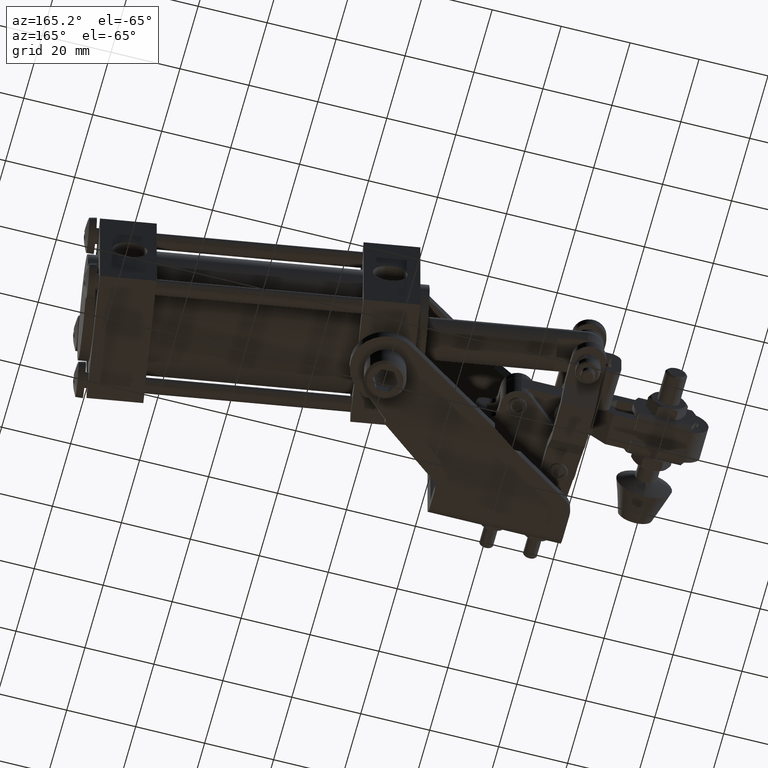
[diagram: clean part render]
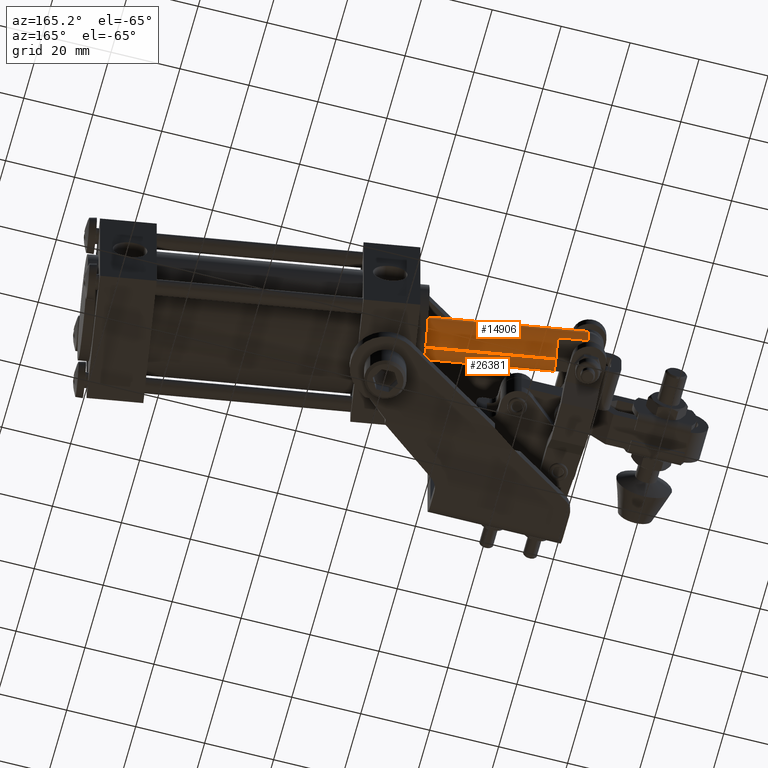
[diagram: same view with one multi-face feature highlighted, each face labeled with its STEP entity id]
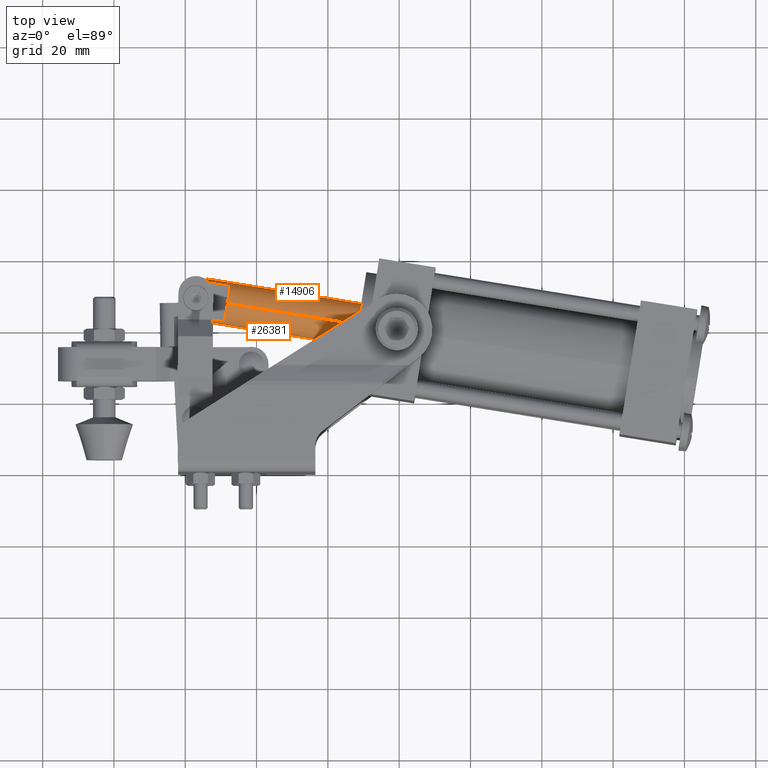
[diagram: same view with one multi-face feature highlighted, each face labeled with its STEP entity id]
A machine part, auxiliary view. The highlighted faces form ONE feature: a constant-radius fillet chain: 2 tangent blend faces with common blend radius 6 mm. The faces share edges in the B-rep.
A second angle (top view) of the same feature is appended — it is thin or edge-on in the first view.
Their STEP definitions:
[1] entity #14906 (Cylinder):
#263 = DIRECTION ( 'NONE',  ( -0.9873515853984645700, 0.1585460400361314000, 1.306212789964221800E-016 ) ) ;
#413 = AXIS2_PLACEMENT_3D ( 'NONE', #27029, #12711, #29423 ) ;
#1218 = AXIS2_PLACEMENT_3D ( 'NONE', #18357, #30197, #1565 ) ;
#1494 = DIRECTION ( 'NONE',  ( 0.0000000000000000000, 0.0000000000000000000, 1.000000000000000000 ) ) ;
#1565 = DIRECTION ( 'NONE',  ( 0.0000000000000000000, 0.0000000000000000000, 1.000000000000000000 ) ) ;
#2232 = VERTEX_POINT ( 'NONE', #17697 ) ;
#3761 = VERTEX_POINT ( 'NONE', #18437 ) ;
#3818 = CARTESIAN_POINT ( 'NONE',  ( 48.19142817750997000, 40.62341611972578900, 2.999999999999984000 ) ) ;
#4087 = VERTEX_POINT ( 'NONE', #9189 ) ;
#4426 = CARTESIAN_POINT ( 'NONE',  ( -27.34096810547258400, 52.75218818248983900, 3.000000000000012000 ) ) ;
#4688 = AXIS2_PLACEMENT_3D ( 'NONE', #28247, #13950, #30682 ) ;
#4916 = VERTEX_POINT ( 'NONE', #18991 ) ;
#5326 = ORIENTED_EDGE ( 'NONE', *, *, #20426, .T. ) ;
#6406 = AXIS2_PLACEMENT_3D ( 'NONE', #30104, #15862, #1494 ) ;
#6723 = CARTESIAN_POINT ( 'NONE',  ( -27.34096810547258700, 52.75218818248983200, -2.999999999999981800 ) ) ;
#7320 = CARTESIAN_POINT ( 'NONE',  ( 47.36759878746568100, 35.49298678719431900, -6.000000000000003600 ) ) ;
#7976 = CARTESIAN_POINT ( 'NONE',  ( 47.36759878746568100, 35.49298678719431200, 5.999999999999998200 ) ) ;
#8202 = ORIENTED_EDGE ( 'NONE', *, *, #24345, .T. ) ;
#8512 = CARTESIAN_POINT ( 'NONE',  ( -35.73345658135967500, 54.09982952279697300, -2.999999999999980900 ) ) ;
#8933 = ORIENTED_EDGE ( 'NONE', *, *, #28285, .T. ) ;
#9189 = CARTESIAN_POINT ( 'NONE',  ( -28.16479749551687200, 47.62175884995836800, 6.000000000000008900 ) ) ;
#9376 = CARTESIAN_POINT ( 'NONE',  ( -28.16479749551687200, 47.62175884995836800, 7.245341598163965700E-015 ) ) ;
#10746 = CIRCLE ( 'NONE', #14683, 6.000000000000000900 ) ;
#11730 = VECTOR ( 'NONE', #263, 1000.000000000000100 ) ;
#11789 = DIRECTION ( 'NONE',  ( 0.0000000000000000000, 0.0000000000000000000, -1.000000000000000000 ) ) ;
#12196 = CARTESIAN_POINT ( 'NONE',  ( 48.19142817750997000, 40.62341611972578200, -2.999999999999992000 ) ) ;
#12323 = EDGE_LOOP ( 'NONE', ( #8202, #8933, #5326, #27613, #15757, #15822, #22468, #19853 ) ) ;
#12372 = CIRCLE ( 'NONE', #4688, 6.000000000000000900 ) ;
#12711 = DIRECTION ( 'NONE',  ( 0.9873515853984645700, -0.1585460400361314000, -1.306212789964221800E-016 ) ) ;
#13950 = DIRECTION ( 'NONE',  ( 0.9873515853984645700, -0.1585460400361314000, -1.306212789964221800E-016 ) ) ;
#14173 = EDGE_CURVE ( 'NONE', #20688, #27506, #21377, .T. ) ;
#14387 = EDGE_CURVE ( 'NONE', #15772, #4087, #12372, .T. ) ;
#14683 = AXIS2_PLACEMENT_3D ( 'NONE', #9376, #26135, #11789 ) ;
#14906 = ADVANCED_FACE ( 'NONE', ( #31030 ), #30229, .T. ) ;
#15757 = ORIENTED_EDGE ( 'NONE', *, *, #14173, .T. ) ;
#15772 = VERTEX_POINT ( 'NONE', #4426 ) ;
#15822 = ORIENTED_EDGE ( 'NONE', *, *, #24880, .T. ) ;
#15862 = DIRECTION ( 'NONE',  ( -0.9873515853984645700, 0.1585460400361314000, 1.306212789964221800E-016 ) ) ;
#15898 = VECTOR ( 'NONE', #27161, 1000.000000000000100 ) ;
#16511 = EDGE_CURVE ( 'NONE', #2232, #4087, #20017, .T. ) ;
#17697 = CARTESIAN_POINT ( 'NONE',  ( 34.53202817728563900, 37.55408530766401800, 6.000000000000000000 ) ) ;
#17813 = VECTOR ( 'NONE', #22880, 1000.000000000000100 ) ;
#18357 = CARTESIAN_POINT ( 'NONE',  ( 47.36759878746568100, 35.49298678719431200, -2.747186245062332900E-015 ) ) ;
#18437 = CARTESIAN_POINT ( 'NONE',  ( 34.53202817728563900, 37.55408530766402500, -6.000000000000001800 ) ) ;
#18991 = CARTESIAN_POINT ( 'NONE',  ( -28.16479749551685800, 47.62175884995837500, -5.999999999999992900 ) ) ;
#19853 = ORIENTED_EDGE ( 'NONE', *, *, #16511, .F. ) ;
#20017 = LINE ( 'NONE', #7976, #15898 ) ;
#20426 = EDGE_CURVE ( 'NONE', #4916, #28143, #10746, .T. ) ;
#20688 = VERTEX_POINT ( 'NONE', #8512 ) ;
#21212 = CIRCLE ( 'NONE', #6406, 6.000000000000000900 ) ;
#21377 = CIRCLE ( 'NONE', #413, 6.000000000000000900 ) ;
#22468 = ORIENTED_EDGE ( 'NONE', *, *, #14387, .T. ) ;
#22835 = EDGE_CURVE ( 'NONE', #28143, #20688, #30040, .T. ) ;
#22880 = DIRECTION ( 'NONE',  ( 0.9873515853984645700, -0.1585460400361314000, -1.306212789964221800E-016 ) ) ;
#24033 = VECTOR ( 'NONE', #28828, 1000.000000000000100 ) ;
#24135 = LINE ( 'NONE', #3818, #17813 ) ;
#24345 = EDGE_CURVE ( 'NONE', #2232, #3761, #21212, .T. ) ;
#24800 = LINE ( 'NONE', #7320, #24033 ) ;
#24880 = EDGE_CURVE ( 'NONE', #27506, #15772, #24135, .T. ) ;
#26135 = DIRECTION ( 'NONE',  ( 0.9873515853984645700, -0.1585460400361314000, -1.306212789964221800E-016 ) ) ;
#27029 = CARTESIAN_POINT ( 'NONE',  ( -36.55728597140395700, 48.96940019026550300, 8.355622469633570400E-015 ) ) ;
#27161 = DIRECTION ( 'NONE',  ( -0.9873515853984645700, 0.1585460400361314000, 1.306212789964221800E-016 ) ) ;
#27506 = VERTEX_POINT ( 'NONE', #30853 ) ;
#27613 = ORIENTED_EDGE ( 'NONE', *, *, #22835, .T. ) ;
#28143 = VERTEX_POINT ( 'NONE', #6723 ) ;
#28247 = CARTESIAN_POINT ( 'NONE',  ( -28.16479749551687200, 47.62175884995836800, 7.245341598163965700E-015 ) ) ;
#28285 = EDGE_CURVE ( 'NONE', #3761, #4916, #24800, .T. ) ;
#28828 = DIRECTION ( 'NONE',  ( -0.9873515853984645700, 0.1585460400361314000, 1.306212789964221800E-016 ) ) ;
#29423 = DIRECTION ( 'NONE',  ( 0.0000000000000000000, 0.0000000000000000000, -1.000000000000000000 ) ) ;
#30040 = LINE ( 'NONE', #12196, #11730 ) ;
#30104 = CARTESIAN_POINT ( 'NONE',  ( 34.53202817728563900, 37.55408530766401800, -1.049109618108844100E-015 ) ) ;
#30197 = DIRECTION ( 'NONE',  ( -0.9873515853984646800, 0.1585460400361314000, 1.306212789964221800E-016 ) ) ;
#30229 = CYLINDRICAL_SURFACE ( 'NONE', #1218, 6.000000000000000900 ) ;
#30682 = DIRECTION ( 'NONE',  ( 0.0000000000000000000, 0.0000000000000000000, -1.000000000000000000 ) ) ;
#30853 = CARTESIAN_POINT ( 'NONE',  ( -35.73345658135967500, 54.09982952279696600, 3.000000000000015100 ) ) ;
#31030 = FACE_OUTER_BOUND ( 'NONE', #12323, .T. ) ;
[2] entity #26381 (Cylinder):
#396 = DIRECTION ( 'NONE',  ( 0.0000000000000000000, 0.0000000000000000000, -1.000000000000000000 ) ) ;
#512 = AXIS2_PLACEMENT_3D ( 'NONE', #5835, #2180, #396 ) ;
#541 = AXIS2_PLACEMENT_3D ( 'NONE', #12190, #28899, #14615 ) ;
#679 = AXIS2_PLACEMENT_3D ( 'NONE', #4436, #21130, #6850 ) ;
#1133 = CIRCLE ( 'NONE', #679, 6.000000000000000900 ) ;
#1602 = EDGE_LOOP ( 'NONE', ( #29588, #10443, #6445, #10437, #14330, #4839, #5197, #15265 ) ) ;
#2180 = DIRECTION ( 'NONE',  ( 0.9873515853984645700, -0.1585460400361314000, -1.306212789964221800E-016 ) ) ;
#2232 = VERTEX_POINT ( 'NONE', #17697 ) ;
#2343 = CARTESIAN_POINT ( 'NONE',  ( -28.98862688556116000, 42.49132951742689100, -2.999999999999987600 ) ) ;
#2405 = LINE ( 'NONE', #12796, #27781 ) ;
#2667 = CARTESIAN_POINT ( 'NONE',  ( -37.38111536144824500, 43.83897085773403300, -2.999999999999986200 ) ) ;
#3319 = DIRECTION ( 'NONE',  ( -0.9873515853984645700, 0.1585460400361314000, 1.306212789964221800E-016 ) ) ;
#3405 = CARTESIAN_POINT ( 'NONE',  ( -37.38111536144824500, 43.83897085773403300, 3.000000000000010200 ) ) ;
#3761 = VERTEX_POINT ( 'NONE', #18437 ) ;
#4087 = VERTEX_POINT ( 'NONE', #9189 ) ;
#4436 = CARTESIAN_POINT ( 'NONE',  ( 34.53202817728563900, 37.55408530766401800, -1.049109618108844100E-015 ) ) ;
#4459 = EDGE_CURVE ( 'NONE', #4087, #27033, #12858, .T. ) ;
#4839 = ORIENTED_EDGE ( 'NONE', *, *, #24107, .T. ) ;
#4916 = VERTEX_POINT ( 'NONE', #18991 ) ;
#4961 = AXIS2_PLACEMENT_3D ( 'NONE', #12128, #27833, #15988 ) ;
#5197 = ORIENTED_EDGE ( 'NONE', *, *, #22993, .T. ) ;
#5835 = CARTESIAN_POINT ( 'NONE',  ( -28.16479749551687200, 47.62175884995836800, 7.245341598163965700E-015 ) ) ;
#6445 = ORIENTED_EDGE ( 'NONE', *, *, #16511, .T. ) ;
#6850 = DIRECTION ( 'NONE',  ( 0.0000000000000000000, 0.0000000000000000000, 1.000000000000000000 ) ) ;
#7320 = CARTESIAN_POINT ( 'NONE',  ( 47.36759878746568100, 35.49298678719431900, -6.000000000000003600 ) ) ;
#7976 = CARTESIAN_POINT ( 'NONE',  ( 47.36759878746568100, 35.49298678719431200, 5.999999999999998200 ) ) ;
#8710 = EDGE_CURVE ( 'NONE', #23359, #4916, #29487, .T. ) ;
#8747 = DIRECTION ( 'NONE',  ( 0.0000000000000000000, 0.0000000000000000000, 1.000000000000000000 ) ) ;
#9189 = CARTESIAN_POINT ( 'NONE',  ( -28.16479749551687200, 47.62175884995836800, 6.000000000000008900 ) ) ;
#9440 = EDGE_CURVE ( 'NONE', #27033, #23516, #9968, .T. ) ;
#9968 = LINE ( 'NONE', #23358, #16383 ) ;
#10437 = ORIENTED_EDGE ( 'NONE', *, *, #4459, .T. ) ;
#10443 = ORIENTED_EDGE ( 'NONE', *, *, #29219, .T. ) ;
#12128 = CARTESIAN_POINT ( 'NONE',  ( -28.16479749551687200, 47.62175884995836800, 7.245341598163965700E-015 ) ) ;
#12190 = CARTESIAN_POINT ( 'NONE',  ( -36.55728597140395700, 48.96940019026550300, 8.355622469633570400E-015 ) ) ;
#12796 = CARTESIAN_POINT ( 'NONE',  ( 46.54376939742139300, 30.36255745466284100, -2.999999999999997300 ) ) ;
#12858 = CIRCLE ( 'NONE', #512, 6.000000000000000900 ) ;
#13261 = VERTEX_POINT ( 'NONE', #2667 ) ;
#13682 = DIRECTION ( 'NONE',  ( -0.9873515853984646800, 0.1585460400361314000, 1.306212789964221800E-016 ) ) ;
#14330 = ORIENTED_EDGE ( 'NONE', *, *, #9440, .T. ) ;
#14615 = DIRECTION ( 'NONE',  ( 0.0000000000000000000, 0.0000000000000000000, -1.000000000000000000 ) ) ;
#15265 = ORIENTED_EDGE ( 'NONE', *, *, #8710, .T. ) ;
#15898 = VECTOR ( 'NONE', #27161, 1000.000000000000100 ) ;
#15988 = DIRECTION ( 'NONE',  ( 0.0000000000000000000, 0.0000000000000000000, -1.000000000000000000 ) ) ;
#15998 = CIRCLE ( 'NONE', #541, 6.000000000000000900 ) ;
#16383 = VECTOR ( 'NONE', #3319, 1000.000000000000100 ) ;
#16511 = EDGE_CURVE ( 'NONE', #2232, #4087, #20017, .T. ) ;
#17697 = CARTESIAN_POINT ( 'NONE',  ( 34.53202817728563900, 37.55408530766401800, 6.000000000000000000 ) ) ;
#18437 = CARTESIAN_POINT ( 'NONE',  ( 34.53202817728563900, 37.55408530766402500, -6.000000000000001800 ) ) ;
#18991 = CARTESIAN_POINT ( 'NONE',  ( -28.16479749551685800, 47.62175884995837500, -5.999999999999992900 ) ) ;
#19126 = AXIS2_PLACEMENT_3D ( 'NONE', #30382, #13682, #8747 ) ;
#20017 = LINE ( 'NONE', #7976, #15898 ) ;
#21130 = DIRECTION ( 'NONE',  ( -0.9873515853984645700, 0.1585460400361314000, 1.306212789964221800E-016 ) ) ;
#21434 = CYLINDRICAL_SURFACE ( 'NONE', #19126, 6.000000000000000900 ) ;
#22993 = EDGE_CURVE ( 'NONE', #13261, #23359, #2405, .T. ) ;
#23358 = CARTESIAN_POINT ( 'NONE',  ( 46.54376939742139300, 30.36255745466283400, 2.999999999999978200 ) ) ;
#23359 = VERTEX_POINT ( 'NONE', #2343 ) ;
#23516 = VERTEX_POINT ( 'NONE', #3405 ) ;
#24033 = VECTOR ( 'NONE', #28828, 1000.000000000000100 ) ;
#24107 = EDGE_CURVE ( 'NONE', #23516, #13261, #15998, .T. ) ;
#24800 = LINE ( 'NONE', #7320, #24033 ) ;
#26381 = ADVANCED_FACE ( 'NONE', ( #28494 ), #21434, .T. ) ;
#27033 = VERTEX_POINT ( 'NONE', #28782 ) ;
#27161 = DIRECTION ( 'NONE',  ( -0.9873515853984645700, 0.1585460400361314000, 1.306212789964221800E-016 ) ) ;
#27781 = VECTOR ( 'NONE', #29527, 1000.000000000000100 ) ;
#27833 = DIRECTION ( 'NONE',  ( 0.9873515853984645700, -0.1585460400361314000, -1.306212789964221800E-016 ) ) ;
#28285 = EDGE_CURVE ( 'NONE', #3761, #4916, #24800, .T. ) ;
#28494 = FACE_OUTER_BOUND ( 'NONE', #1602, .T. ) ;
#28782 = CARTESIAN_POINT ( 'NONE',  ( -28.98862688556116000, 42.49132951742688400, 3.000000000000006700 ) ) ;
#28828 = DIRECTION ( 'NONE',  ( -0.9873515853984645700, 0.1585460400361314000, 1.306212789964221800E-016 ) ) ;
#28899 = DIRECTION ( 'NONE',  ( 0.9873515853984645700, -0.1585460400361314000, -1.306212789964221800E-016 ) ) ;
#29219 = EDGE_CURVE ( 'NONE', #3761, #2232, #1133, .T. ) ;
#29487 = CIRCLE ( 'NONE', #4961, 6.000000000000000900 ) ;
#29527 = DIRECTION ( 'NONE',  ( 0.9873515853984645700, -0.1585460400361314000, -1.306212789964221800E-016 ) ) ;
#29588 = ORIENTED_EDGE ( 'NONE', *, *, #28285, .F. ) ;
#30382 = CARTESIAN_POINT ( 'NONE',  ( 47.36759878746568100, 35.49298678719431200, -2.747186245062332900E-015 ) ) ;